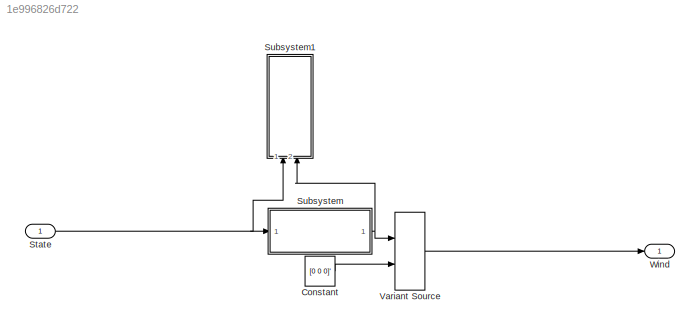
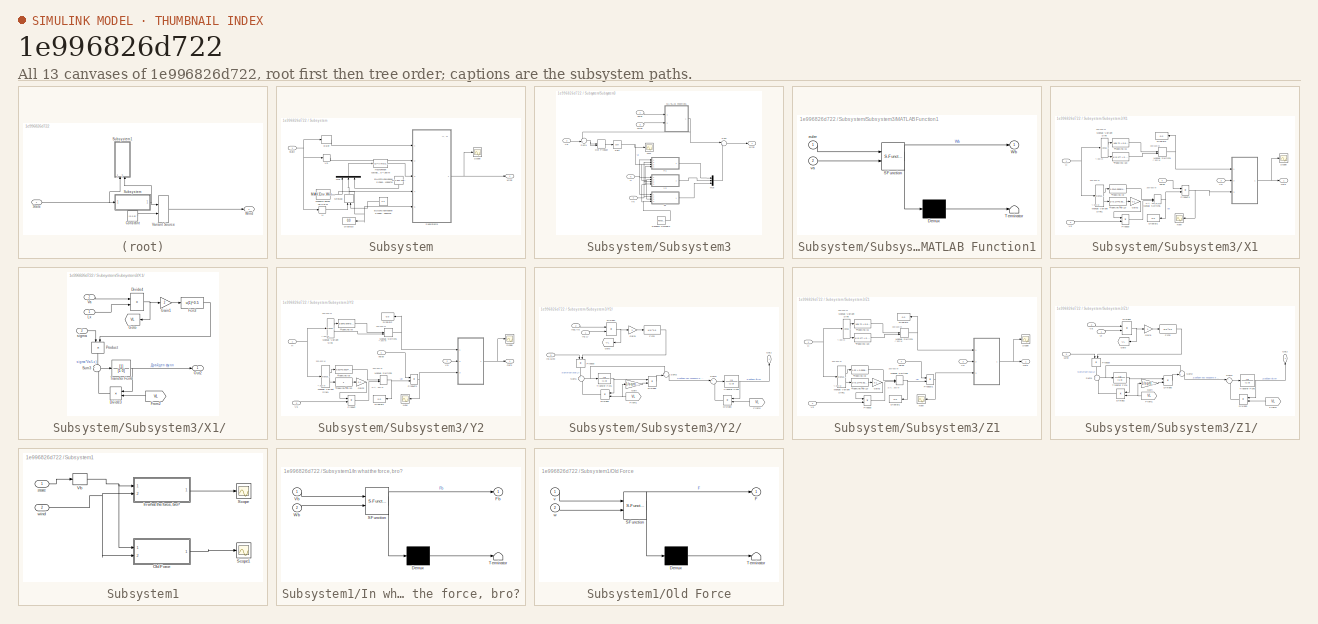
[diagram: thumbnail index - all 13 canvases of the model, root first then tree order]
MODEL slx_1e996826d722
KIND model
CONFIG AbsTol = auto
CONFIG EnableMultiTasking = off
CONFIG FixedStep = auto
CONFIG MaxStep = auto
CONFIG MinStep = auto
CONFIG RelTol = 1e-3
CONFIG SampleTimeConstraint = Unconstrained
CONFIG Solver = VariableStepAuto
CONFIG SolverName = VariableStepAuto
CONFIG StartTime = 0.0
CONFIG StopTime = 10.0
BLOCK [Constant] Constant
  Value = [0 0 0]'
BLOCK [Inport] State
  PortDimensions = [12; 1]
BLOCK [SubSystem] Subsystem
  Ports = [1, 1]
  RequestExecContextInheritance = off
BLOCK [Fcn] Subsystem/    Постоянная составляющая скорости ветра < 300 м
  Expr = u(1)*((ln(u(2)/0.15)/(ln(u(3)/0.15))))
BLOCK [Display] Subsystem/Display3
  Decimation = 1
  NameLocation = top
  Ports = [1]
BLOCK [Selector] Subsystem/Euler
  IndexOptions = Index vector (dialog)
  Indices = [7, 8, 9]
  InputPortWidth = 12
  OutputSizes = 1
  Ports = [1, 1]
BLOCK [Selector] Subsystem/H
  IndexOptions = Index vector (dialog)
  Indices = [3]
  InputPortWidth = 12
  OutputSizes = 1
  Ports = [1, 1]
BLOCK [MinMax] Subsystem/MinMax
  Function = max
  Inputs = 2
  NameLocation = right
  Ports = [2, 1]
BLOCK [Mux] Subsystem/Mux
  DisplayOption = bar
  Inputs = 3
  NameLocation = left
  Ports = [3, 1]
BLOCK [Scope] Subsystem/Scope
  Floating = off
  NumInputPorts = 1
  Ports = [1]
  ScopeSpecificationString = Simulink.scopes.TimeScopeBlockCfg('CurrentConfiguration', extmgr.ConfigurationSet(extmgr.Configuration('Core','General UI',true,'FigureColor',[0 0 0]),extmgr.Configuration('Core','Source UI',true),extmgr.Configuration('Sources','WiredSimulink',true,'DataLoggingVariableName','ScopeData2'),extmgr.Configuration('Visuals','Time Domain',true,'PlotType','Line','SerializedDisplays',{struct('MinYLimReal',...<+1700ch>
BLOCK [SubSystem] Subsystem/Subsystem3
  Ports = [5, 1]
  RequestExecContextInheritance = off
BLOCK [DotProduct] Subsystem/Subsystem3/Dot Product
  OutDataTypeStr = Inherit: Inherit via internal rule
BLOCK [Inport] Subsystem/Subsystem3/H
  Port = 5
BLOCK [SubSystem] Subsystem/Subsystem3/MATLAB Function1
  ErrorFcn = Stateflow.Translate.translate
  PermitHierarchicalResolution = ExplicitOnly
  Ports = [2, 1]
  RequestExecContextInheritance = off
  SFBlockType = MATLAB Function
  TreatAsAtomicUnit = on
BLOCK [Demux] Subsystem/Subsystem3/MATLAB Function1/ Demux 
  Outputs = 1
  Ports = [1, 1]
BLOCK [S-Function] Subsystem/Subsystem3/MATLAB Function1/ SFunction 
  EnableBusSupport = on
  FunctionName = sf_sfun
  PortCounts = [2 2]
  Ports = [2, 2]
  SFcnIsStateOwnerBlock = off
  SFunctionDeploymentMode = off
  Tag = Stateflow S-Function 23
BLOCK [Terminator] Subsystem/Subsystem3/MATLAB Function1/ Terminator 
BLOCK [Outport] Subsystem/Subsystem3/MATLAB Function1/Wb
BLOCK [Inport] Subsystem/Subsystem3/MATLAB Function1/euler
BLOCK [Inport] Subsystem/Subsystem3/MATLAB Function1/va
  Port = 2
BLOCK [Mux] Subsystem/Subsystem3/Mux
  DisplayOption = bar
  Inputs = 3
  Ports = [3, 1]
BLOCK [RandomNumber] Subsystem/Subsystem3/Random Number2
  SampleTime = 0.1
BLOCK [Sqrt] Subsystem/Subsystem3/Sqrt
BLOCK [Sum] Subsystem/Subsystem3/Sum
  Inputs = |++
  Ports = [2, 1]
BLOCK [Sum] Subsystem/Subsystem3/Sum1
  Inputs = -+|
  Ports = [2, 1]
BLOCK [Inport] Subsystem/Subsystem3/V6
  Port = 4
BLOCK [Inport] Subsystem/Subsystem3/Vb
  Port = 2
BLOCK [Inport] Subsystem/Subsystem3/Wind
  Port = 3
BLOCK [Scope] Subsystem/Subsystem3/Wx1
  Floating = off
  NumInputPorts = 1
  Ports = [1]
  ScopeSpecificationString = Simulink.scopes.TimeScopeBlockCfg('CurrentConfiguration', extmgr.ConfigurationSet(extmgr.Configuration('Core','General UI',true),extmgr.Configuration('Core','Source UI',true),extmgr.Configuration('Sources','WiredSimulink',true,'DataLoggingVariableName','ScopeData1'),extmgr.Configuration('Visuals','Time Domain',true,'SerializedDisplays',{struct('MinYLimReal','19.58791','MaxYLimReal','20.17234','YLa...<+1396ch>
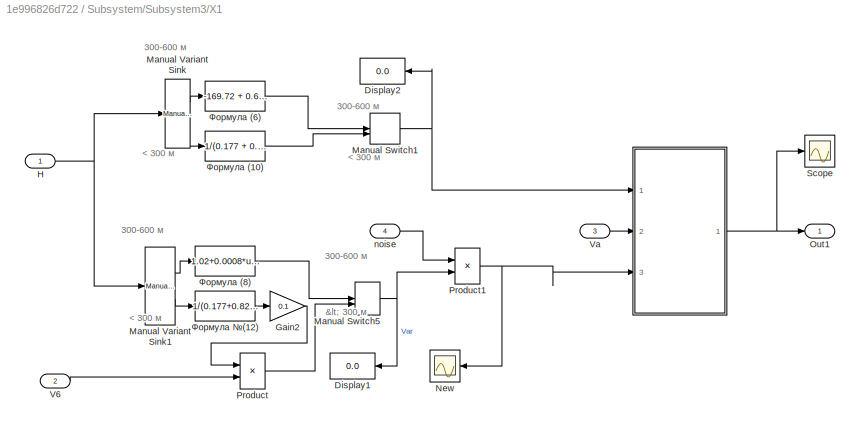
BLOCK [SubSystem] Subsystem/Subsystem3/X1
  Ports = [4, 1]
  RequestExecContextInheritance = off
  TreatAsAtomicUnit = on
BLOCK [SubSystem] Subsystem/Subsystem3/X1/ 
  Ports = [3, 1]
  RequestExecContextInheritance = off
BLOCK [Product] Subsystem/Subsystem3/X1/ /Divide3
  Inputs = **
  NameLocation = top
  Ports = [2, 1]
BLOCK [Product] Subsystem/Subsystem3/X1/ /Divide4
  Inputs = */
  NameLocation = top
  Ports = [2, 1]
BLOCK [Fcn] Subsystem/Subsystem3/X1/ /Fcn3
  Expr = u(1)^0.5
BLOCK [From] Subsystem/Subsystem3/X1/ /From2
  GotoTag = VL
  NameLocation = top
BLOCK [Gain] Subsystem/Subsystem3/X1/ /Gain1
  Gain = 2
  NameLocation = top
BLOCK [Goto] Subsystem/Subsystem3/X1/ /Goto
  GotoTag = VL
BLOCK [Inport] Subsystem/Subsystem3/X1/ /Lx
  NameLocation = top
BLOCK [Outport] Subsystem/Subsystem3/X1/ /Out2
BLOCK [Product] Subsystem/Subsystem3/X1/ /Product
  NameLocation = right
  Ports = [2, 1]
BLOCK [Sum] Subsystem/Subsystem3/X1/ /Sum3
  Inputs = +-
  Ports = [2, 1]
BLOCK [TransferFcn] Subsystem/Subsystem3/X1/ /Transfer Fcn6
  Denominator = [1  0]
BLOCK [Inport] Subsystem/Subsystem3/X1/ /Va
  NameLocation = top
  Port = 2
BLOCK [Inport] Subsystem/Subsystem3/X1/ /sigma 
  NameLocation = top
  Port = 3
BLOCK [Display] Subsystem/Subsystem3/X1/Display1
  Decimation = 1
  NameLocation = top
  Ports = [1]
BLOCK [Display] Subsystem/Subsystem3/X1/Display2
  Decimation = 1
  NameLocation = top
  Ports = [1]
BLOCK [Gain] Subsystem/Subsystem3/X1/Gain2
  Gain = 0.1
BLOCK [Inport] Subsystem/Subsystem3/X1/H
BLOCK [ManualSwitch] Subsystem/Subsystem3/X1/Manual Switch1
  CurrentSetting = 0
BLOCK [ManualSwitch] Subsystem/Subsystem3/X1/Manual Switch5
  CurrentSetting = 0
BLOCK [Reference] Subsystem/Subsystem3/X1/Manual Variant Sink  REF=simulink/Signal
Routing/Manual
Variant Sink
  Ports = [1, 2]
  SourceBlock = simulink/Signal\nRouting/Manual\nVariant Sink
  SourceProductBaseCode = SL
  SourceType = ManualVariantSink
BLOCK [Reference] Subsystem/Subsystem3/X1/Manual Variant Sink1  REF=simulink/Signal
Routing/Manual
Variant Sink
  Ports = [1, 2]
  SourceBlock = simulink/Signal\nRouting/Manual\nVariant Sink
  SourceProductBaseCode = SL
  SourceType = ManualVariantSink
BLOCK [Scope] Subsystem/Subsystem3/X1/New
  Floating = off
  NameLocation = top
  NumInputPorts = 1
  Ports = [1]
  ScopeSpecificationString = Simulink.scopes.TimeScopeBlockCfg('CurrentConfiguration', extmgr.ConfigurationSet(extmgr.Configuration('Core','General UI',true),extmgr.Configuration('Core','Source UI',true),extmgr.Configuration('Sources','WiredSimulink',true,'DataLoggingVariableName','ScopeData2'),extmgr.Configuration('Visuals','Time Domain',true,'SerializedDisplays',{struct('MinYLimReal','-2.31668','MaxYLimReal','1.98812','YLab...<+1534ch>
BLOCK [Outport] Subsystem/Subsystem3/X1/Out1
BLOCK [Product] Subsystem/Subsystem3/X1/Product
  Ports = [2, 1]
BLOCK [Product] Subsystem/Subsystem3/X1/Product1
  Ports = [2, 1]
BLOCK [Scope] Subsystem/Subsystem3/X1/Scope
  Floating = off
  NumInputPorts = 1
  Ports = [1]
  ScopeSpecificationString = Simulink.scopes.TimeScopeBlockCfg('CurrentConfiguration', extmgr.ConfigurationSet(extmgr.Configuration('Core','General UI',true),extmgr.Configuration('Core','Source UI',true),extmgr.Configuration('Sources','WiredSimulink',true,'DataLoggingVariableName','ScopeData3'),extmgr.Configuration('Visuals','Time Domain',true),extmgr.Configuration('Tools','Plot Navigation',true),extmgr.Configuration('Tools',...<+40ch>
BLOCK [Inport] Subsystem/Subsystem3/X1/V6
  Port = 2
BLOCK [Inport] Subsystem/Subsystem3/X1/Va
  Port = 3
BLOCK [Inport] Subsystem/Subsystem3/X1/noise
  Port = 4
BLOCK [Fcn] Subsystem/Subsystem3/X1/Формула (10)
  Expr = 1/(0.177 + 0.823*(u(1)/300))^1.2
BLOCK [Fcn] Subsystem/Subsystem3/X1/Формула (6)
  Expr = -169.72 + 0.605*u(1)
BLOCK [Fcn] Subsystem/Subsystem3/X1/Формула (8)
  Expr = 1.02+0.0008*u(1)
BLOCK [Fcn] Subsystem/Subsystem3/X1/Формула №(12)
  Expr = 1/(0.177+0.823*(u(1)/300))^0.4
BLOCK [SubSystem] Subsystem/Subsystem3/Y2
  Ports = [4, 1]
  RequestExecContextInheritance = off
  TreatAsAtomicUnit = on
BLOCK [SubSystem] Subsystem/Subsystem3/Y2/ 
  Ports = [3, 1]
  RequestExecContextInheritance = off
BLOCK [Product] Subsystem/Subsystem3/Y2/ /Divide2
  Inputs = **
  NameLocation = top
  Ports = [2, 1]
BLOCK [Product] Subsystem/Subsystem3/Y2/ /Divide3
  Inputs = **
  NameLocation = top
  Ports = [2, 1]
BLOCK [Product] Subsystem/Subsystem3/Y2/ /Divide4
  Inputs = */
  NameLocation = top
  Ports = [2, 1]
BLOCK [Product] Subsystem/Subsystem3/Y2/ /Divide5
  Inputs = **
  Ports = [2, 1]
BLOCK [Fcn] Subsystem/Subsystem3/Y2/ /Fcn3
  Expr = u(1)^0.5
BLOCK [From] Subsystem/Subsystem3/Y2/ /From1
  GotoTag = VL
  NameLocation = top
BLOCK [From] Subsystem/Subsystem3/Y2/ /From2
  GotoTag = VL
  NameLocation = top
BLOCK [Gain] Subsystem/Subsystem3/Y2/ /Gain
  Gain = 1/sqrt(3)
BLOCK [Gain] Subsystem/Subsystem3/Y2/ /Gain1
  Gain = 3
  NameLocation = top
BLOCK [Goto] Subsystem/Subsystem3/Y2/ /Goto
  GotoTag = VL
BLOCK [Inport] Subsystem/Subsystem3/Y2/ /In1 Ly
  NameLocation = top
BLOCK [Inport] Subsystem/Subsystem3/Y2/ /In1 шум 
  NameLocation = top
  Port = 3
BLOCK [Inport] Subsystem/Subsystem3/Y2/ /In31 Va
  NameLocation = top
  Port = 2
BLOCK [Outport] Subsystem/Subsystem3/Y2/ /Out2
  NameLocation = right
BLOCK [Product] Subsystem/Subsystem3/Y2/ /Product
  NameLocation = right
  Ports = [2, 1]
BLOCK [Sum] Subsystem/Subsystem3/Y2/ /Sum1
  Inputs = +-
  Ports = [2, 1]
BLOCK [Sum] Subsystem/Subsystem3/Y2/ /Sum2
  NameLocation = top
  Ports = [2, 1]
BLOCK [Sum] Subsystem/Subsystem3/Y2/ /Sum3
  Inputs = +-
  Ports = [2, 1]
BLOCK [TransferFcn] Subsystem/Subsystem3/Y2/ /Transfer Fcn1
  Denominator = [1  0]
BLOCK [TransferFcn] Subsystem/Subsystem3/Y2/ /Transfer Fcn6
  Denominator = [1  0]
BLOCK [Display] Subsystem/Subsystem3/Y2/Display1
  Decimation = 1
  NameLocation = top
  Ports = [1]
BLOCK [Display] Subsystem/Subsystem3/Y2/Display2
  Decimation = 1
  NameLocation = top
  Ports = [1]
BLOCK [Gain] Subsystem/Subsystem3/Y2/Gain2
  Gain = 0.1
BLOCK [Inport] Subsystem/Subsystem3/Y2/H
BLOCK [ManualSwitch] Subsystem/Subsystem3/Y2/Manual Switch1
  CurrentSetting = 0
BLOCK [ManualSwitch] Subsystem/Subsystem3/Y2/Manual Switch5
  CurrentSetting = 0
BLOCK [Reference] Subsystem/Subsystem3/Y2/Manual Variant Sink  REF=simulink/Signal
Routing/Manual
Variant Sink
  Ports = [1, 2]
  SourceBlock = simulink/Signal\nRouting/Manual\nVariant Sink
  SourceProductBaseCode = SL
  SourceType = ManualVariantSink
BLOCK [Reference] Subsystem/Subsystem3/Y2/Manual Variant Sink1  REF=simulink/Signal
Routing/Manual
Variant Sink
  Ports = [1, 2]
  SourceBlock = simulink/Signal\nRouting/Manual\nVariant Sink
  SourceProductBaseCode = SL
  SourceType = ManualVariantSink
BLOCK [Scope] Subsystem/Subsystem3/Y2/New
  Floating = off
  NameLocation = top
  NumInputPorts = 1
  Ports = [1]
  ScopeSpecificationString = Simulink.scopes.TimeScopeBlockCfg('CurrentConfiguration', extmgr.ConfigurationSet(extmgr.Configuration('Core','General UI',true),extmgr.Configuration('Core','Source UI',true),extmgr.Configuration('Sources','WiredSimulink',true,'DataLoggingVariableName','ScopeData2'),extmgr.Configuration('Visuals','Time Domain',true,'SerializedDisplays',{struct('MinYLimReal','-2.82261','MaxYLimReal','2.57881','YLab...<+1515ch>
BLOCK [Outport] Subsystem/Subsystem3/Y2/Out1
BLOCK [Product] Subsystem/Subsystem3/Y2/Product
  Ports = [2, 1]
BLOCK [Product] Subsystem/Subsystem3/Y2/Product1
  Ports = [2, 1]
BLOCK [Scope] Subsystem/Subsystem3/Y2/Scope
  Floating = off
  NumInputPorts = 1
  Ports = [1]
  ScopeSpecificationString = Simulink.scopes.TimeScopeBlockCfg('CurrentConfiguration', extmgr.ConfigurationSet(extmgr.Configuration('Core','General UI',true),extmgr.Configuration('Core','Source UI',true),extmgr.Configuration('Sources','WiredSimulink',true,'DataLoggingVariableName','ScopeData3'),extmgr.Configuration('Visuals','Time Domain',true,'SerializedDisplays',{struct('MinYLimReal','-0.15319','MaxYLimReal','0.25218','YLab...<+1360ch>
BLOCK [Inport] Subsystem/Subsystem3/Y2/V6
  Port = 3
BLOCK [Inport] Subsystem/Subsystem3/Y2/Va
  Port = 2
BLOCK [Inport] Subsystem/Subsystem3/Y2/noise
  Port = 4
BLOCK [Fcn] Subsystem/Subsystem3/Y2/Формула (6)
  Expr = 6.09+0.878*u(1)
BLOCK [Fcn] Subsystem/Subsystem3/Y2/Формула (8)
  Expr = 0.627+0.0014*u(1)
BLOCK [Fcn] Subsystem/Subsystem3/Y2/Формула №(12)
  Expr = 1
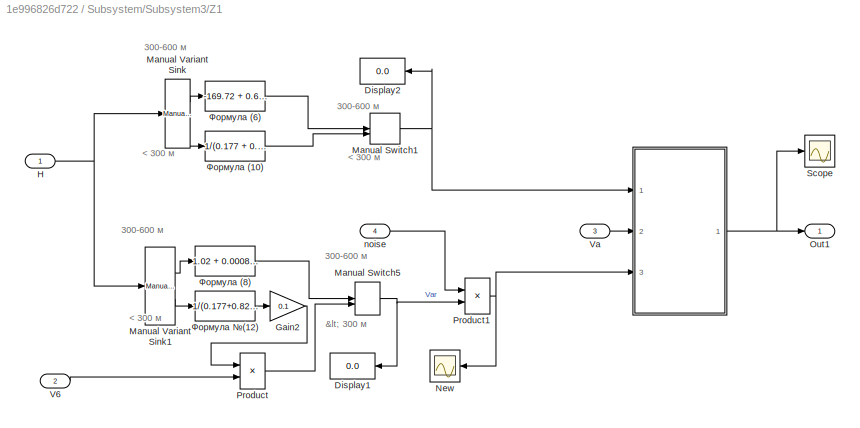
BLOCK [SubSystem] Subsystem/Subsystem3/Z1
  Ports = [4, 1]
  RequestExecContextInheritance = off
  TreatAsAtomicUnit = on
BLOCK [SubSystem] Subsystem/Subsystem3/Z1/ 
  Ports = [3, 1]
  RequestExecContextInheritance = off
BLOCK [Product] Subsystem/Subsystem3/Z1/ /Divide2
  Inputs = **
  NameLocation = top
  Ports = [2, 1]
BLOCK [Product] Subsystem/Subsystem3/Z1/ /Divide3
  Inputs = **
  NameLocation = top
  Ports = [2, 1]
BLOCK [Product] Subsystem/Subsystem3/Z1/ /Divide4
  Inputs = */
  NameLocation = top
  Ports = [2, 1]
BLOCK [Product] Subsystem/Subsystem3/Z1/ /Divide5
  Inputs = **
  Ports = [2, 1]
BLOCK [Fcn] Subsystem/Subsystem3/Z1/ /Fcn3
  Expr = u(1)^0.5
BLOCK [From] Subsystem/Subsystem3/Z1/ /From1
  GotoTag = VL
  NameLocation = top
BLOCK [From] Subsystem/Subsystem3/Z1/ /From2
  GotoTag = VL
  NameLocation = top
BLOCK [Gain] Subsystem/Subsystem3/Z1/ /Gain
  Gain = 1/sqrt(3)
BLOCK [Gain] Subsystem/Subsystem3/Z1/ /Gain1
  Gain = 3
  NameLocation = top
BLOCK [Goto] Subsystem/Subsystem3/Z1/ /Goto
  GotoTag = VL
BLOCK [Inport] Subsystem/Subsystem3/Z1/ /Lz
  NameLocation = top
BLOCK [Outport] Subsystem/Subsystem3/Z1/ /Out2
  NameLocation = right
BLOCK [Product] Subsystem/Subsystem3/Z1/ /Product
  NameLocation = right
  Ports = [2, 1]
BLOCK [Sum] Subsystem/Subsystem3/Z1/ /Sum1
  Inputs = +-
  Ports = [2, 1]
BLOCK [Sum] Subsystem/Subsystem3/Z1/ /Sum2
  NameLocation = top
  Ports = [2, 1]
BLOCK [Sum] Subsystem/Subsystem3/Z1/ /Sum3
  Inputs = +-
  Ports = [2, 1]
BLOCK [TransferFcn] Subsystem/Subsystem3/Z1/ /Transfer Fcn1
  Denominator = [1  0]
BLOCK [TransferFcn] Subsystem/Subsystem3/Z1/ /Transfer Fcn6
  Denominator = [1  0]
BLOCK [Inport] Subsystem/Subsystem3/Z1/ /Va
  NameLocation = top
  Port = 2
BLOCK [Inport] Subsystem/Subsystem3/Z1/ /шум 
  NameLocation = top
  Port = 3
BLOCK [Display] Subsystem/Subsystem3/Z1/Display1
  Decimation = 1
  NameLocation = top
  Ports = [1]
BLOCK [Display] Subsystem/Subsystem3/Z1/Display2
  Decimation = 1
  NameLocation = top
  Ports = [1]
BLOCK [Gain] Subsystem/Subsystem3/Z1/Gain2
  Gain = 0.1
BLOCK [Inport] Subsystem/Subsystem3/Z1/H
BLOCK [ManualSwitch] Subsystem/Subsystem3/Z1/Manual Switch1
  CurrentSetting = 0
BLOCK [ManualSwitch] Subsystem/Subsystem3/Z1/Manual Switch5
  CurrentSetting = 0
BLOCK [Reference] Subsystem/Subsystem3/Z1/Manual Variant Sink  REF=simulink/Signal
Routing/Manual
Variant Sink
  Ports = [1, 2]
  SourceBlock = simulink/Signal\nRouting/Manual\nVariant Sink
  SourceProductBaseCode = SL
  SourceType = ManualVariantSink
BLOCK [Reference] Subsystem/Subsystem3/Z1/Manual Variant Sink1  REF=simulink/Signal
Routing/Manual
Variant Sink
  Ports = [1, 2]
  SourceBlock = simulink/Signal\nRouting/Manual\nVariant Sink
  SourceProductBaseCode = SL
  SourceType = ManualVariantSink
BLOCK [Scope] Subsystem/Subsystem3/Z1/New
  Floating = off
  NameLocation = top
  NumInputPorts = 1
  Ports = [1]
  ScopeSpecificationString = Simulink.scopes.TimeScopeBlockCfg('CurrentConfiguration', extmgr.ConfigurationSet(extmgr.Configuration('Core','General UI',true),extmgr.Configuration('Core','Source UI',true),extmgr.Configuration('Sources','WiredSimulink',true,'DataLoggingVariableName','ScopeData2'),extmgr.Configuration('Visuals','Time Domain',true,'SerializedDisplays',{struct('MinYLimReal','-2.23726','MaxYLimReal','1.78939','YLab...<+1515ch>
BLOCK [Outport] Subsystem/Subsystem3/Z1/Out1
BLOCK [Product] Subsystem/Subsystem3/Z1/Product
  Ports = [2, 1]
BLOCK [Product] Subsystem/Subsystem3/Z1/Product1
  Ports = [2, 1]
BLOCK [Scope] Subsystem/Subsystem3/Z1/Scope
  Floating = off
  NumInputPorts = 1
  Ports = [1]
  ScopeSpecificationString = Simulink.scopes.TimeScopeBlockCfg('CurrentConfiguration', extmgr.ConfigurationSet(extmgr.Configuration('Core','General UI',true),extmgr.Configuration('Core','Source UI',true),extmgr.Configuration('Sources','WiredSimulink',true,'DataLoggingVariableName','ScopeData3'),extmgr.Configuration('Visuals','Time Domain',true),extmgr.Configuration('Tools','Plot Navigation',true),extmgr.Configuration('Tools',...<+40ch>
BLOCK [Inport] Subsystem/Subsystem3/Z1/V6
  Port = 2
BLOCK [Inport] Subsystem/Subsystem3/Z1/Va
  Port = 3
BLOCK [Inport] Subsystem/Subsystem3/Z1/noise
  Port = 4
BLOCK [Fcn] Subsystem/Subsystem3/Z1/Формула (10)
  Expr = 1/(0.177 + 0.823*(u(1)/300))^1.2
BLOCK [Fcn] Subsystem/Subsystem3/Z1/Формула (6)
  Expr = -169.72 + 0.605*u(1)
BLOCK [Fcn] Subsystem/Subsystem3/Z1/Формула (8)
  Expr = 1.02 + 0.0008*u(1)
BLOCK [Fcn] Subsystem/Subsystem3/Z1/Формула №(12)
  Expr = 1/(0.177+0.823*(u(1)/300))^0.4
BLOCK [Inport] Subsystem/Subsystem3/euler
BLOCK [Outport] Subsystem/Subsystem3/wind
BLOCK [Selector] Subsystem/Vb
  IndexOptions = Index vector (dialog)
  Indices = [4 5 6]
  InputPortWidth = 12
  OutputSizes = 1
  Ports = [1, 1]
BLOCK [Inport] Subsystem/state
BLOCK [Outport] Subsystem/wind
BLOCK [Constant] Subsystem/Высота измерения среднегодовой скорости
  NameLocation = left
  Value = MAV.Env.Wind_speed_h
BLOCK [Constant] Subsystem/Высота измерения среднегодовой скорости1
  NameLocation = top
  Value = 0.5
BLOCK [Constant] Subsystem/скорость ветра на Н=6 м 
  Value = MAV.Env.Wind_speed_statistics
BLOCK [SubSystem] Subsystem1
  Commented = on
  NameLocation = right
  Ports = [2]
  RequestExecContextInheritance = off
BLOCK [SubSystem] Subsystem1/In what the force, bro?
  ErrorFcn = Stateflow.Translate.translate
  PermitHierarchicalResolution = ExplicitOnly
  Ports = [2, 1]
  RequestExecContextInheritance = off
  SFBlockType = MATLAB Function
  TreatAsAtomicUnit = on
BLOCK [Demux] Subsystem1/In what the force, bro?/ Demux 
  Outputs = 1
  Ports = [1, 1]
BLOCK [S-Function] Subsystem1/In what the force, bro?/ SFunction 
  EnableBusSupport = on
  FunctionName = sf_sfun
  PortCounts = [2 2]
  Ports = [2, 2]
  SFcnIsStateOwnerBlock = off
  SFunctionDeploymentMode = off
  Tag = Stateflow S-Function 20
BLOCK [Terminator] Subsystem1/In what the force, bro?/ Terminator 
BLOCK [Outport] Subsystem1/In what the force, bro?/Fb
BLOCK [Inport] Subsystem1/In what the force, bro?/Vb
BLOCK [Inport] Subsystem1/In what the force, bro?/Wb
  Port = 2
BLOCK [SubSystem] Subsystem1/Old Force
  ErrorFcn = Stateflow.Translate.translate
  PermitHierarchicalResolution = ExplicitOnly
  Ports = [2, 1]
  RequestExecContextInheritance = off
  SFBlockType = MATLAB Function
  TreatAsAtomicUnit = on
BLOCK [Demux] Subsystem1/Old Force/ Demux 
  Outputs = 1
  Ports = [1, 1]
BLOCK [S-Function] Subsystem1/Old Force/ SFunction 
  EnableBusSupport = on
  FunctionName = sf_sfun
  PortCounts = [2 2]
  Ports = [2, 2]
  SFcnIsStateOwnerBlock = off
  SFunctionDeploymentMode = off
  Tag = Stateflow S-Function 24
BLOCK [Terminator] Subsystem1/Old Force/ Terminator 
BLOCK [Outport] Subsystem1/Old Force/F
BLOCK [Inport] Subsystem1/Old Force/v
BLOCK [Inport] Subsystem1/Old Force/w
  Port = 2
BLOCK [Scope] Subsystem1/Scope
  Floating = off
  NumInputPorts = 1
  Ports = [1]
  ScopeSpecificationString = Simulink.scopes.TimeScopeBlockCfg('CurrentConfiguration', extmgr.ConfigurationSet(extmgr.Configuration('Core','General UI',true,'FigureColor',[1 1 1]),extmgr.Configuration('Core','Source UI',true),extmgr.Configuration('Sources','WiredSimulink',true,'DataLoggingVariableName','ScopeData1'),extmgr.Configuration('Visuals','Time Domain',true,'SerializedDisplays',{struct('MinYLimReal','-3.11229','MaxYLi...<+1845ch>
BLOCK [Scope] Subsystem1/Scope1
  Floating = off
  NumInputPorts = 1
  Ports = [1]
  ScopeSpecificationString = Simulink.scopes.TimeScopeBlockCfg('CurrentConfiguration', extmgr.ConfigurationSet(extmgr.Configuration('Core','General UI',true),extmgr.Configuration('Core','Source UI',true),extmgr.Configuration('Sources','WiredSimulink',true,'DataLoggingVariableName','ScopeData2'),extmgr.Configuration('Visuals','Time Domain',true,'SerializedDisplays',{struct('MinYLimReal','-1.49217','MaxYLimReal','0.1658','YLabe...<+1794ch>
BLOCK [Selector] Subsystem1/Vb
  IndexOptions = Index vector (dialog)
  Indices = [4:6]
  InputPortWidth = 12
  OutputSizes = 1
  Ports = [1, 1]
BLOCK [Inport] Subsystem1/state
BLOCK [Inport] Subsystem1/wind
  Port = 2
BLOCK [VariantSource] Variant Source
  Ports = [2, 1]
BLOCK [Outport] Wind
ANNOTATION Subsystem: Н, м
ANNOTATION Subsystem/Subsystem3/X1: 300-600 м
ANNOTATION Subsystem/Subsystem3/X1: < 300 м
ANNOTATION Subsystem/Subsystem3/X1: 300-60 0 м
ANNOTATION Subsystem/Subsystem3/Y2: 300-600 м
ANNOTATION Subsystem/Subsystem3/Y2: < 300 м
ANNOTATION Subsystem/Subsystem3/Y2: 300-60 0 м
ANNOTATION Subsystem/Subsystem3/Z1: 300-600 м
ANNOTATION Subsystem/Subsystem3/Z1: < 300 м
ANNOTATION Subsystem/Subsystem3/Z1: 300-60 0 м
LINE Constant:1 -> Variant Source:2
NET State:1 -> Subsystem1:1, Subsystem:1
LINE Subsystem/    Постоянная составляющая скорости ветра < 300 м:1 -> Subsystem/Subsystem3:3
LINE Subsystem/Euler:1 -> Subsystem/Subsystem3:1
LINE Subsystem/H:1 -> Subsystem/MinMax:1
NET Subsystem/MinMax:1 -> Subsystem/Display3:1, Subsystem/Mux:2, Subsystem/Subsystem3:5
LINE Subsystem/Mux:1 -> Subsystem/    Постоянная составляющая скорости ветра < 300 м:1
LINE Subsystem/Subsystem3/Dot Product:1 -> Subsystem/Subsystem3/Sqrt:1
NET Subsystem/Subsystem3/H:1 -> Subsystem/Subsystem3/X1:1, Subsystem/Subsystem3/Y2:1, Subsystem/Subsystem3/Z1:1
NET Subsystem/Subsystem3/MATLAB Function1:1 -> Subsystem/Subsystem3/Sum1:1, Subsystem/Subsystem3/Sum:1
LINE Subsystem/Subsystem3/Mux:1 -> Subsystem/Subsystem3/Sum:2
NET Subsystem/Subsystem3/Random Number2:1 -> Subsystem/Subsystem3/X1:4, Subsystem/Subsystem3/Y2:4, Subsystem/Subsystem3/Z1:4
NET Subsystem/Subsystem3/Sqrt:1 -> Subsystem/Subsystem3/Wx1:1, Subsystem/Subsystem3/X1:3, Subsystem/Subsystem3/Y2:2, Subsystem/Subsystem3/Z1:3
NET Subsystem/Subsystem3/Sum1:1 -> Subsystem/Subsystem3/Dot Product:1, Subsystem/Subsystem3/Dot Product:2
LINE Subsystem/Subsystem3/Sum:1 -> Subsystem/Subsystem3/wind:1
NET Subsystem/Subsystem3/V6:1 -> Subsystem/Subsystem3/X1:2, Subsystem/Subsystem3/Y2:3, Subsystem/Subsystem3/Z1:2
LINE Subsystem/Subsystem3/Vb:1 -> Subsystem/Subsystem3/Sum1:2
LINE Subsystem/Subsystem3/Wind:1 -> Subsystem/Subsystem3/MATLAB Function1:2
LINE Subsystem/Subsystem3/X1/ /Divide3:1 -> Subsystem/Subsystem3/X1/ /Sum3:2
NET Subsystem/Subsystem3/X1/ /Divide4:1 -> Subsystem/Subsystem3/X1/ /Gain1:1, Subsystem/Subsystem3/X1/ /Goto:1
LINE Subsystem/Subsystem3/X1/ /Fcn3:1 -> Subsystem/Subsystem3/X1/ /Product:2
LINE Subsystem/Subsystem3/X1/ /From2:1 -> Subsystem/Subsystem3/X1/ /Divide3:2
LINE Subsystem/Subsystem3/X1/ /Gain1:1 -> Subsystem/Subsystem3/X1/ /Fcn3:1
LINE Subsystem/Subsystem3/X1/ /Lx:1 -> Subsystem/Subsystem3/X1/ /Divide4:2
LINE Subsystem/Subsystem3/X1/ /Product:1 -> Subsystem/Subsystem3/X1/ /Sum3:1
LINE Subsystem/Subsystem3/X1/ /Sum3:1 -> Subsystem/Subsystem3/X1/ /Transfer Fcn6:1
NET Subsystem/Subsystem3/X1/ /Transfer Fcn6:1 -> Subsystem/Subsystem3/X1/ /Divide3:1, Subsystem/Subsystem3/X1/ /Out2:1
LINE Subsystem/Subsystem3/X1/ /Va:1 -> Subsystem/Subsystem3/X1/ /Divide4:1
LINE Subsystem/Subsystem3/X1/ /sigma :1 -> Subsystem/Subsystem3/X1/ /Product:1
NET Subsystem/Subsystem3/X1/ :1 -> Subsystem/Subsystem3/X1/Out1:1, Subsystem/Subsystem3/X1/Scope:1
LINE Subsystem/Subsystem3/X1/Gain2:1 -> Subsystem/Subsystem3/X1/Product:1
NET Subsystem/Subsystem3/X1/H:1 -> Subsystem/Subsystem3/X1/Manual Variant Sink1:1, Subsystem/Subsystem3/X1/Manual Variant Sink:1
NET Subsystem/Subsystem3/X1/Manual Switch1:1 -> Subsystem/Subsystem3/X1/ :1, Subsystem/Subsystem3/X1/Display2:1
NET Subsystem/Subsystem3/X1/Manual Switch5:1 -> Subsystem/Subsystem3/X1/Display1:1, Subsystem/Subsystem3/X1/Product1:2
LINE Subsystem/Subsystem3/X1/Manual Variant Sink1:1 -> Subsystem/Subsystem3/X1/Формула (8):1
LINE Subsystem/Subsystem3/X1/Manual Variant Sink1:2 -> Subsystem/Subsystem3/X1/Формула №(12):1
LINE Subsystem/Subsystem3/X1/Manual Variant Sink:1 -> Subsystem/Subsystem3/X1/Формула (6):1
LINE Subsystem/Subsystem3/X1/Manual Variant Sink:2 -> Subsystem/Subsystem3/X1/Формула (10):1
NET Subsystem/Subsystem3/X1/Product1:1 -> Subsystem/Subsystem3/X1/ :3, Subsystem/Subsystem3/X1/New:1
LINE Subsystem/Subsystem3/X1/Product:1 -> Subsystem/Subsystem3/X1/Manual Switch5:2
LINE Subsystem/Subsystem3/X1/V6:1 -> Subsystem/Subsystem3/X1/Product:2
LINE Subsystem/Subsystem3/X1/Va:1 -> Subsystem/Subsystem3/X1/ :2
LINE Subsystem/Subsystem3/X1/noise:1 -> Subsystem/Subsystem3/X1/Product1:1
LINE Subsystem/Subsystem3/X1/Формула (10):1 -> Subsystem/Subsystem3/X1/Manual Switch1:2
LINE Subsystem/Subsystem3/X1/Формула (6):1 -> Subsystem/Subsystem3/X1/Manual Switch1:1
LINE Subsystem/Subsystem3/X1/Формула (8):1 -> Subsystem/Subsystem3/X1/Manual Switch5:1
LINE Subsystem/Subsystem3/X1/Формула №(12):1 -> Subsystem/Subsystem3/X1/Gain2:1
LINE Subsystem/Subsystem3/X1:1 -> Subsystem/Subsystem3/Mux:1
LINE Subsystem/Subsystem3/Y2/ /Divide2:1 -> Subsystem/Subsystem3/Y2/ /Sum1:2
LINE Subsystem/Subsystem3/Y2/ /Divide3:1 -> Subsystem/Subsystem3/Y2/ /Sum3:2
NET Subsystem/Subsystem3/Y2/ /Divide4:1 -> Subsystem/Subsystem3/Y2/ /Gain1:1, Subsystem/Subsystem3/Y2/ /Goto:1
LINE Subsystem/Subsystem3/Y2/ /Divide5:1 -> Subsystem/Subsystem3/Y2/ /Sum2:2
LINE Subsystem/Subsystem3/Y2/ /Fcn3:1 -> Subsystem/Subsystem3/Y2/ /Product:2
NET Subsystem/Subsystem3/Y2/ /From1:1 -> Subsystem/Subsystem3/Y2/ /Divide2:2, Subsystem/Subsystem3/Y2/ /Gain:1
LINE Subsystem/Subsystem3/Y2/ /From2:1 -> Subsystem/Subsystem3/Y2/ /Divide3:2
LINE Subsystem/Subsystem3/Y2/ /Gain1:1 -> Subsystem/Subsystem3/Y2/ /Fcn3:1
LINE Subsystem/Subsystem3/Y2/ /Gain:1 -> Subsystem/Subsystem3/Y2/ /Divide5:2
LINE Subsystem/Subsystem3/Y2/ /In1 Ly:1 -> Subsystem/Subsystem3/Y2/ /Divide4:2
LINE Subsystem/Subsystem3/Y2/ /In1 шум :1 -> Subsystem/Subsystem3/Y2/ /Product:1
LINE Subsystem/Subsystem3/Y2/ /In31 Va:1 -> Subsystem/Subsystem3/Y2/ /Divide4:1
LINE Subsystem/Subsystem3/Y2/ /Product:1 -> Subsystem/Subsystem3/Y2/ /Sum1:1
NET Subsystem/Subsystem3/Y2/ /Sum1:1 -> Subsystem/Subsystem3/Y2/ /Sum2:1, Subsystem/Subsystem3/Y2/ /Transfer Fcn1:1
LINE Subsystem/Subsystem3/Y2/ /Sum2:1 -> Subsystem/Subsystem3/Y2/ /Sum3:1
LINE Subsystem/Subsystem3/Y2/ /Sum3:1 -> Subsystem/Subsystem3/Y2/ /Transfer Fcn6:1
NET Subsystem/Subsystem3/Y2/ /Transfer Fcn1:1 -> Subsystem/Subsystem3/Y2/ /Divide2:1, Subsystem/Subsystem3/Y2/ /Divide5:1
NET Subsystem/Subsystem3/Y2/ /Transfer Fcn6:1 -> Subsystem/Subsystem3/Y2/ /Divide3:1, Subsystem/Subsystem3/Y2/ /Out2:1
NET Subsystem/Subsystem3/Y2/ :1 -> Subsystem/Subsystem3/Y2/Out1:1, Subsystem/Subsystem3/Y2/Scope:1
LINE Subsystem/Subsystem3/Y2/Gain2:1 -> Subsystem/Subsystem3/Y2/Product:1
NET Subsystem/Subsystem3/Y2/H:1 -> Subsystem/Subsystem3/Y2/Manual Variant Sink1:1, Subsystem/Subsystem3/Y2/Manual Variant Sink:1
NET Subsystem/Subsystem3/Y2/Manual Switch1:1 -> Subsystem/Subsystem3/Y2/ :1, Subsystem/Subsystem3/Y2/Display2:1
NET Subsystem/Subsystem3/Y2/Manual Switch5:1 -> Subsystem/Subsystem3/Y2/Display1:1, Subsystem/Subsystem3/Y2/Product1:2
LINE Subsystem/Subsystem3/Y2/Manual Variant Sink1:1 -> Subsystem/Subsystem3/Y2/Формула (8):1
LINE Subsystem/Subsystem3/Y2/Manual Variant Sink1:2 -> Subsystem/Subsystem3/Y2/Формула №(12):1
LINE Subsystem/Subsystem3/Y2/Manual Variant Sink:1 -> Subsystem/Subsystem3/Y2/Формула (6):1
LINE Subsystem/Subsystem3/Y2/Manual Variant Sink:2 -> Subsystem/Subsystem3/Y2/Manual Switch1:2
NET Subsystem/Subsystem3/Y2/Product1:1 -> Subsystem/Subsystem3/Y2/ :3, Subsystem/Subsystem3/Y2/New:1
LINE Subsystem/Subsystem3/Y2/Product:1 -> Subsystem/Subsystem3/Y2/Manual Switch5:2
LINE Subsystem/Subsystem3/Y2/V6:1 -> Subsystem/Subsystem3/Y2/Product:2
LINE Subsystem/Subsystem3/Y2/Va:1 -> Subsystem/Subsystem3/Y2/ :2
LINE Subsystem/Subsystem3/Y2/noise:1 -> Subsystem/Subsystem3/Y2/Product1:1
LINE Subsystem/Subsystem3/Y2/Формула (6):1 -> Subsystem/Subsystem3/Y2/Manual Switch1:1
LINE Subsystem/Subsystem3/Y2/Формула (8):1 -> Subsystem/Subsystem3/Y2/Manual Switch5:1
LINE Subsystem/Subsystem3/Y2/Формула №(12):1 -> Subsystem/Subsystem3/Y2/Gain2:1
LINE Subsystem/Subsystem3/Y2:1 -> Subsystem/Subsystem3/Mux:2
LINE Subsystem/Subsystem3/Z1/ /Divide2:1 -> Subsystem/Subsystem3/Z1/ /Sum1:2
LINE Subsystem/Subsystem3/Z1/ /Divide3:1 -> Subsystem/Subsystem3/Z1/ /Sum3:2
NET Subsystem/Subsystem3/Z1/ /Divide4:1 -> Subsystem/Subsystem3/Z1/ /Gain1:1, Subsystem/Subsystem3/Z1/ /Goto:1
LINE Subsystem/Subsystem3/Z1/ /Divide5:1 -> Subsystem/Subsystem3/Z1/ /Sum2:2
LINE Subsystem/Subsystem3/Z1/ /Fcn3:1 -> Subsystem/Subsystem3/Z1/ /Product:2
NET Subsystem/Subsystem3/Z1/ /From1:1 -> Subsystem/Subsystem3/Z1/ /Divide2:2, Subsystem/Subsystem3/Z1/ /Gain:1
LINE Subsystem/Subsystem3/Z1/ /From2:1 -> Subsystem/Subsystem3/Z1/ /Divide3:2
LINE Subsystem/Subsystem3/Z1/ /Gain1:1 -> Subsystem/Subsystem3/Z1/ /Fcn3:1
LINE Subsystem/Subsystem3/Z1/ /Gain:1 -> Subsystem/Subsystem3/Z1/ /Divide5:2
LINE Subsystem/Subsystem3/Z1/ /Lz:1 -> Subsystem/Subsystem3/Z1/ /Divide4:2
LINE Subsystem/Subsystem3/Z1/ /Product:1 -> Subsystem/Subsystem3/Z1/ /Sum1:1
NET Subsystem/Subsystem3/Z1/ /Sum1:1 -> Subsystem/Subsystem3/Z1/ /Sum2:1, Subsystem/Subsystem3/Z1/ /Transfer Fcn1:1
LINE Subsystem/Subsystem3/Z1/ /Sum2:1 -> Subsystem/Subsystem3/Z1/ /Sum3:1
LINE Subsystem/Subsystem3/Z1/ /Sum3:1 -> Subsystem/Subsystem3/Z1/ /Transfer Fcn6:1
NET Subsystem/Subsystem3/Z1/ /Transfer Fcn1:1 -> Subsystem/Subsystem3/Z1/ /Divide2:1, Subsystem/Subsystem3/Z1/ /Divide5:1
NET Subsystem/Subsystem3/Z1/ /Transfer Fcn6:1 -> Subsystem/Subsystem3/Z1/ /Divide3:1, Subsystem/Subsystem3/Z1/ /Out2:1
LINE Subsystem/Subsystem3/Z1/ /Va:1 -> Subsystem/Subsystem3/Z1/ /Divide4:1
LINE Subsystem/Subsystem3/Z1/ /шум :1 -> Subsystem/Subsystem3/Z1/ /Product:1
NET Subsystem/Subsystem3/Z1/ :1 -> Subsystem/Subsystem3/Z1/Out1:1, Subsystem/Subsystem3/Z1/Scope:1
LINE Subsystem/Subsystem3/Z1/Gain2:1 -> Subsystem/Subsystem3/Z1/Product:1
NET Subsystem/Subsystem3/Z1/H:1 -> Subsystem/Subsystem3/Z1/Manual Variant Sink1:1, Subsystem/Subsystem3/Z1/Manual Variant Sink:1
NET Subsystem/Subsystem3/Z1/Manual Switch1:1 -> Subsystem/Subsystem3/Z1/ :1, Subsystem/Subsystem3/Z1/Display2:1
NET Subsystem/Subsystem3/Z1/Manual Switch5:1 -> Subsystem/Subsystem3/Z1/Display1:1, Subsystem/Subsystem3/Z1/Product1:2
LINE Subsystem/Subsystem3/Z1/Manual Variant Sink1:1 -> Subsystem/Subsystem3/Z1/Формула (8):1
LINE Subsystem/Subsystem3/Z1/Manual Variant Sink1:2 -> Subsystem/Subsystem3/Z1/Формула №(12):1
LINE Subsystem/Subsystem3/Z1/Manual Variant Sink:1 -> Subsystem/Subsystem3/Z1/Формула (6):1
LINE Subsystem/Subsystem3/Z1/Manual Variant Sink:2 -> Subsystem/Subsystem3/Z1/Формула (10):1
NET Subsystem/Subsystem3/Z1/Product1:1 -> Subsystem/Subsystem3/Z1/ :3, Subsystem/Subsystem3/Z1/New:1
LINE Subsystem/Subsystem3/Z1/Product:1 -> Subsystem/Subsystem3/Z1/Manual Switch5:2
LINE Subsystem/Subsystem3/Z1/V6:1 -> Subsystem/Subsystem3/Z1/Product:2
LINE Subsystem/Subsystem3/Z1/Va:1 -> Subsystem/Subsystem3/Z1/ :2
LINE Subsystem/Subsystem3/Z1/noise:1 -> Subsystem/Subsystem3/Z1/Product1:1
LINE Subsystem/Subsystem3/Z1/Формула (10):1 -> Subsystem/Subsystem3/Z1/Manual Switch1:2
LINE Subsystem/Subsystem3/Z1/Формула (6):1 -> Subsystem/Subsystem3/Z1/Manual Switch1:1
LINE Subsystem/Subsystem3/Z1/Формула (8):1 -> Subsystem/Subsystem3/Z1/Manual Switch5:1
LINE Subsystem/Subsystem3/Z1/Формула №(12):1 -> Subsystem/Subsystem3/Z1/Gain2:1
LINE Subsystem/Subsystem3/Z1:1 -> Subsystem/Subsystem3/Mux:3
LINE Subsystem/Subsystem3/euler:1 -> Subsystem/Subsystem3/MATLAB Function1:1
NET Subsystem/Subsystem3:1 -> Subsystem/Scope:1, Subsystem/wind:1
LINE Subsystem/Vb:1 -> Subsystem/Subsystem3:2
NET Subsystem/state:1 -> Subsystem/Euler:1, Subsystem/H:1, Subsystem/Vb:1
LINE Subsystem/Высота измерения среднегодовой скорости1:1 -> Subsystem/MinMax:2
LINE Subsystem/Высота измерения среднегодовой скорости:1 -> Subsystem/Mux:3
NET Subsystem/скорость ветра на Н=6 м :1 -> Subsystem/Mux:1, Subsystem/Subsystem3:4
LINE Subsystem1/In what the force, bro?:1 -> Subsystem1/Scope:1
LINE Subsystem1/Old Force:1 -> Subsystem1/Scope1:1
NET Subsystem1/Vb:1 -> Subsystem1/In what the force, bro?:1, Subsystem1/Old Force:1
LINE Subsystem1/state:1 -> Subsystem1/Vb:1
NET Subsystem1/wind:1 -> Subsystem1/In what the force, bro?:2, Subsystem1/Old Force:2
NET Subsystem:1 -> Subsystem1:2, Variant Source:1
LINE Variant Source:1 -> Wind:1
note: NET lines group one-source signal fan-out (src -> all destinations, sorted); 1:1 wires keep LINE
CHART Subsystem1/In what the force, bro? states=1 transitions=1
  STATE_LABEL 'eML_blk_kernel()'
  STATE_LABEL 'SCRIPT:\nfunction Fb = AerialDrag(Vb, Wb)\n    rho = 1.19;\n    Va_vec = Vb - Wb;  % w - wind, v - ground speed; body frame\n    Va = norm(Va_vec);\n    alpha = atan2(Va_vec(2), Va_vec(1));    % attack angle\n    beta = atan2(Va_vec(3), Va_vec(1));     % скольжения angle\n    \n    Va_0 = 10; % скорость, для которой рассчитаны зависимости сил\n    rho_0 = 1.225;  % плотность воздуха при выведении зависимос...<+2529ch>'
CHART Subsystem/Subsystem3/MATLAB Function1 states=1 transitions=1
  STATE_LABEL 'eML_blk_kernel()'
  STATE_LABEL 'SCRIPT:\nfunction Wb = rotate_g_b(euler, va)\nR = getRotationMatrix(euler);\nvay=0; vaz=0;\nVa = [-va; vay; vaz];\nWb = R*Va;\n\nfunction R = getRotationMatrix(angles)\n    phi = 1; t = 2; psi = 3; %indices\n    s = sin(angles);\n    c = cos(angles);\n    R = [\n        c(t)*c(psi) s(t)    -c(t)*s(psi);\n        -c(phi)*s(t)*c(psi)+s(phi)*s(psi) c(phi)*c(t) c(phi)*s(t)*s(psi)+s(phi)*c(psi);\n        s(phi)*s(t)...<+82ch>'
CHART Subsystem1/Old Force states=1 transitions=1
  STATE_LABEL 'eML_blk_kernel()'
  STATE_LABEL "SCRIPT:\nfunction F = AerialDrag(v, w)\n    rho = 1.19;\n    S = [5573 59852 6884] / (100*10)^2;\n    C = 1.0;\n    Va = v - w;  % w - wind, v - ground speed;\n    % S - характерная площадь\n    F = - C * rho * Va.^2/2 .* S';\nend"
CHART  states=0 transitions=0
CHART  states=0 transitions=0
CHART  states=0 transitions=0
